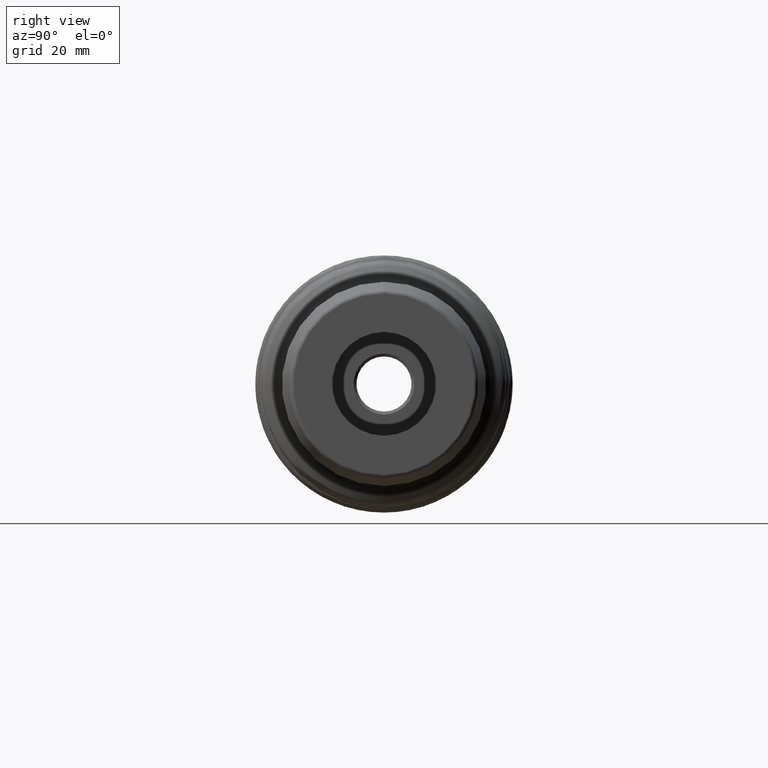
[diagram: clean part render]
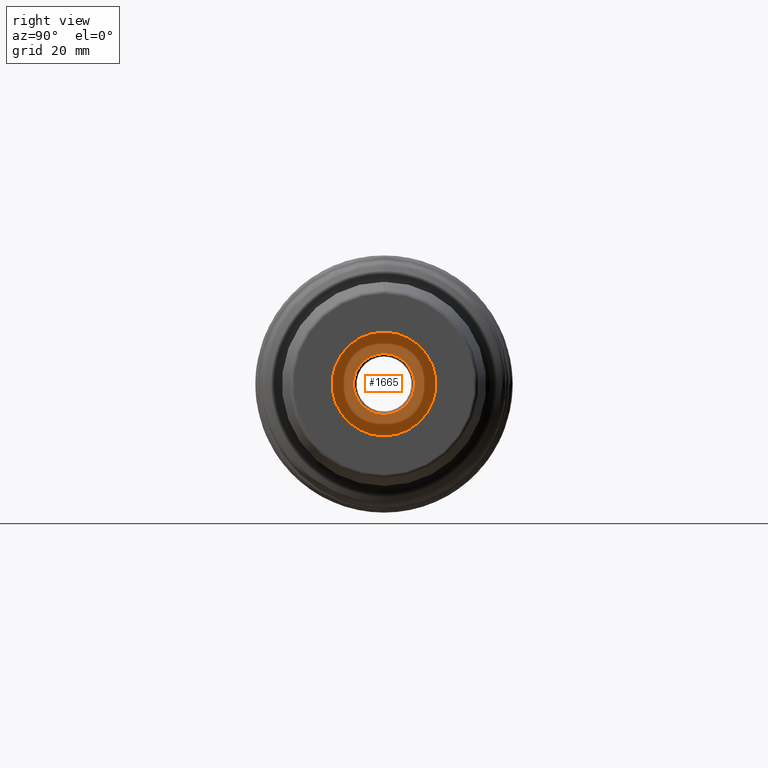
[diagram: same view with one face highlighted and labeled with its STEP entity id]
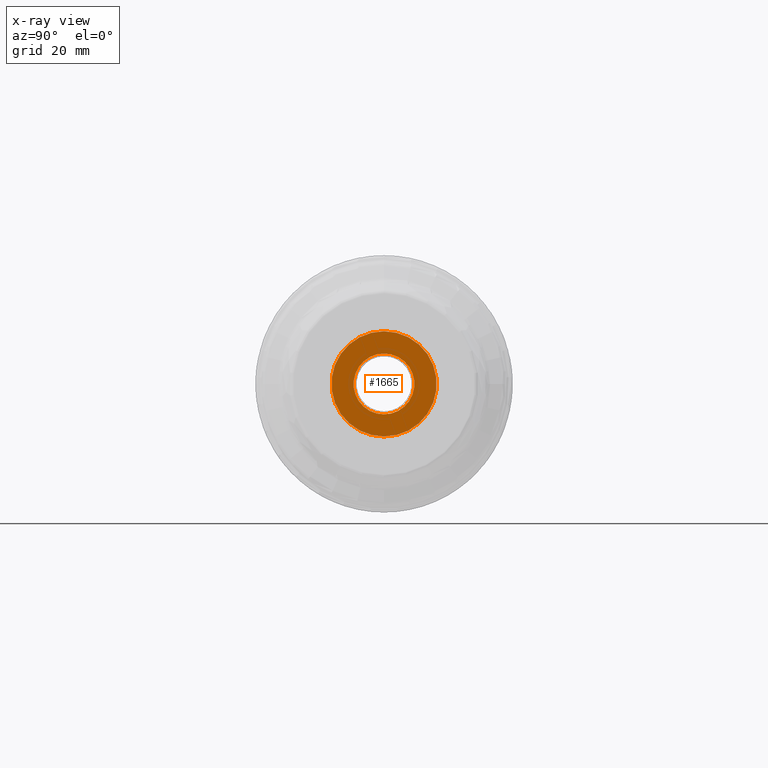
[diagram: x-ray of the same camera — body ghosted, the highlighted face saturated]
A machine part, right view. The second image highlights one B-rep face of the part: STEP entity #1665.
The next image is the same camera in x-ray: the body ghosted, the highlighted face saturated — about 5% of this face is hidden behind the body in this view.
In plain terms, the highlighted planar face has unit normal (1, 0, 0).
Its self-contained STEP definition (entity closure, byte-faithful):
#39=PLANE('',#1852);
#80=FACE_BOUND('',#258,.T.);
#164=FACE_OUTER_BOUND('',#257,.T.);
#257=EDGE_LOOP('',(#1256,#1257));
#258=EDGE_LOOP('',(#1258,#1259));
#471=CIRCLE('',#1750,7.458734);
#472=CIRCLE('',#1751,7.458734);
#542=CIRCLE('',#1850,12.9);
#543=CIRCLE('',#1851,12.9);
#622=VERTEX_POINT('',#2604);
#623=VERTEX_POINT('',#2605);
#684=VERTEX_POINT('',#2852);
#685=VERTEX_POINT('',#2854);
#809=EDGE_CURVE('',#622,#623,#471,.T.);
#810=EDGE_CURVE('',#623,#622,#472,.T.);
#899=EDGE_CURVE('',#685,#684,#542,.T.);
#900=EDGE_CURVE('',#684,#685,#543,.T.);
#1256=ORIENTED_EDGE('',*,*,#899,.T.);
#1257=ORIENTED_EDGE('',*,*,#900,.T.);
#1258=ORIENTED_EDGE('',*,*,#809,.T.);
#1259=ORIENTED_EDGE('',*,*,#810,.T.);
#1665=ADVANCED_FACE('',(#164,#80),#39,.T.);
#1750=AXIS2_PLACEMENT_3D('',#2606,#2020,#2021);
#1751=AXIS2_PLACEMENT_3D('',#2607,#2022,#2023);
#1850=AXIS2_PLACEMENT_3D('',#2855,#2235,#2236);
#1851=AXIS2_PLACEMENT_3D('',#2856,#2237,#2238);
#1852=AXIS2_PLACEMENT_3D('',#2857,#2239,#2240);
#2020=DIRECTION('center_axis',(-1.,0.,0.));
#2021=DIRECTION('ref_axis',(0.,0.,-1.));
#2022=DIRECTION('center_axis',(-1.,0.,0.));
#2023=DIRECTION('ref_axis',(0.,0.,-1.));
#2235=DIRECTION('center_axis',(1.,0.,0.));
#2236=DIRECTION('ref_axis',(0.,0.,-1.));
#2237=DIRECTION('center_axis',(1.,0.,0.));
#2238=DIRECTION('ref_axis',(0.,0.,-1.));
#2239=DIRECTION('center_axis',(1.,0.,0.));
#2240=DIRECTION('ref_axis',(0.,0.,-1.));
#2604=CARTESIAN_POINT('',(31.,0.,-7.458734));
#2605=CARTESIAN_POINT('',(31.,-9.13431471879154E-16,7.458734));
#2606=CARTESIAN_POINT('Origin',(31.,0.,0.));
#2607=CARTESIAN_POINT('Origin',(31.,0.,0.));
#2852=CARTESIAN_POINT('',(31.,-1.57979437090008E-15,12.9));
#2854=CARTESIAN_POINT('',(31.,0.,-12.9));
#2855=CARTESIAN_POINT('Origin',(31.,0.,0.));
#2856=CARTESIAN_POINT('Origin',(31.,0.,0.));
#2857=CARTESIAN_POINT('Origin',(31.,0.,1.54728362527885E-14));